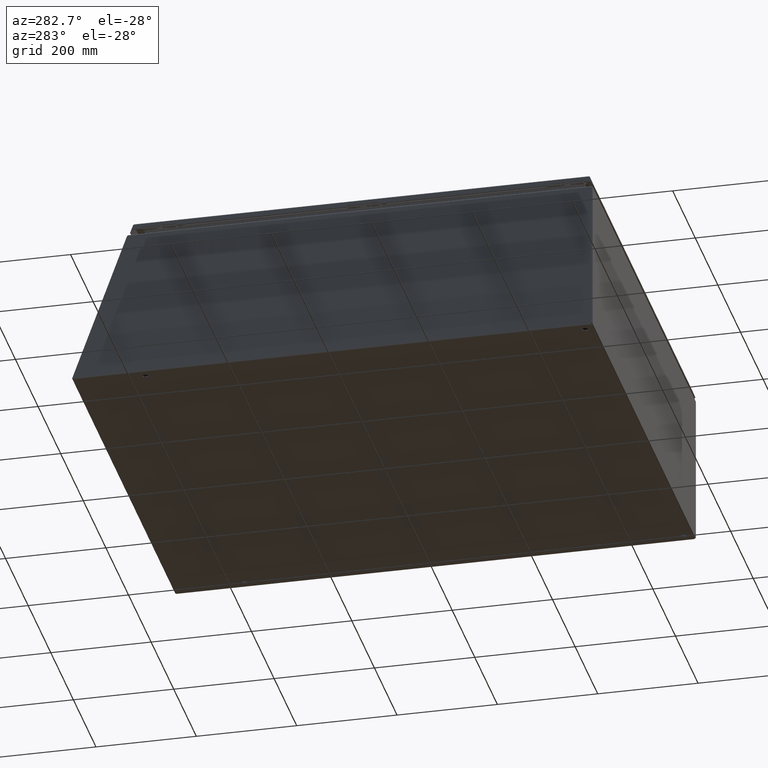
[diagram: clean part render]
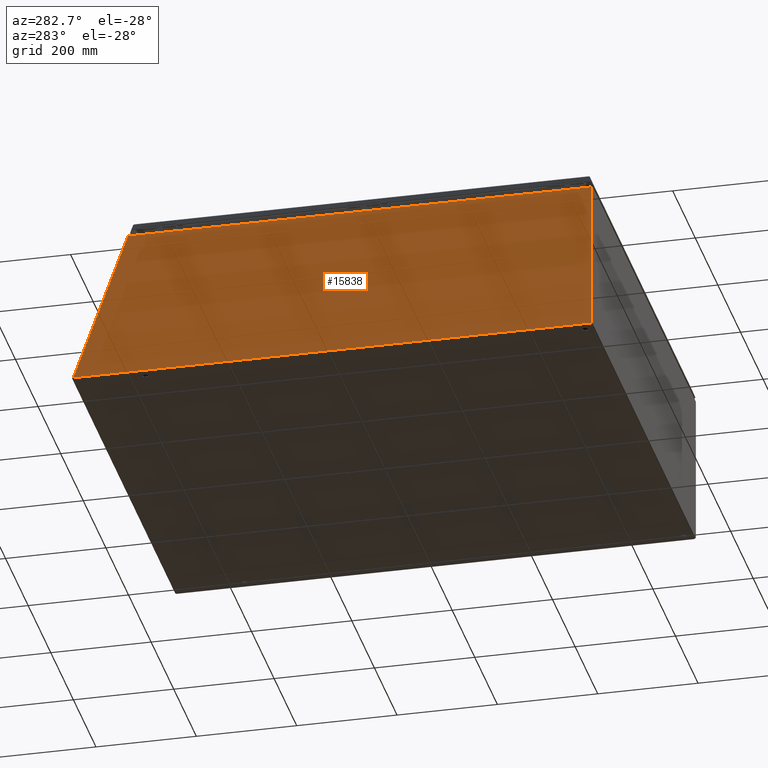
[diagram: same view with one face highlighted and labeled with its STEP entity id]
A machine part, auxiliary view. The second image highlights one B-rep face of the part: STEP entity #15838.
In plain terms, the highlighted planar face has unit normal (1, 0, 0).
Its self-contained STEP definition (entity closure, byte-faithful):
#439=PLANE('',#16859);
#1195=LINE('',#23392,#2422);
#1260=LINE('',#24519,#2487);
#1270=LINE('',#24539,#2497);
#1273=LINE('',#24544,#2500);
#1274=LINE('',#24546,#2501);
#2422=VECTOR('',#18619,36.3583507603756);
#2487=VECTOR('',#18746,0.0309571067808761);
#2497=VECTOR('',#18766,11.7638393167319);
#2500=VECTOR('',#18771,12.5461238486048);
#2501=VECTOR('',#18772,40.6381017833623);
#3998=FACE_OUTER_BOUND('',#5002,.T.);
#5002=EDGE_LOOP('',(#10875,#10876,#10877,#10878,#10879,#10880));
#6102=CIRCLE('',#16860,0.07);
#6830=VERTEX_POINT('',#23386);
#6831=VERTEX_POINT('',#23391);
#6882=VERTEX_POINT('',#24142);
#6909=VERTEX_POINT('',#24518);
#6914=VERTEX_POINT('',#24538);
#6916=VERTEX_POINT('',#24545);
#8301=EDGE_CURVE('',#6831,#6830,#1195,.T.);
#8432=EDGE_CURVE('',#6909,#6831,#1260,.T.);
#8443=EDGE_CURVE('',#6909,#6914,#1270,.T.);
#8446=EDGE_CURVE('',#6830,#6882,#1273,.T.);
#8447=EDGE_CURVE('',#6882,#6916,#1274,.T.);
#8448=EDGE_CURVE('',#6916,#6914,#6102,.T.);
#10875=ORIENTED_EDGE('',*,*,#8432,.T.);
#10876=ORIENTED_EDGE('',*,*,#8301,.T.);
#10877=ORIENTED_EDGE('',*,*,#8446,.T.);
#10878=ORIENTED_EDGE('',*,*,#8447,.T.);
#10879=ORIENTED_EDGE('',*,*,#8448,.T.);
#10880=ORIENTED_EDGE('',*,*,#8443,.F.);
#15838=ADVANCED_FACE('',(#3998),#439,.F.);
#16859=AXIS2_PLACEMENT_3D('',#24543,#18769,#18770);
#16860=AXIS2_PLACEMENT_3D('',#24547,#18773,#18774);
#18619=DIRECTION('',(-1.11022302462537E-016,1.,1.11022302462516E-016));
#18746=DIRECTION('',(-1.11022302462537E-016,1.,1.11022302462516E-016));
#18766=DIRECTION('',(1.12406775534952E-013,8.7910739129653E-017,-1.));
#18769=DIRECTION('center_axis',(1.,1.11022302462515E-016,9.54111947661805E-014));
#18770=DIRECTION('ref_axis',(9.92628201856862E-014,-1.11022302462506E-016,
-1.));
#18771=DIRECTION('',(1.56919551577468E-013,0.342020143325669,-0.939692620785908));
#18772=DIRECTION('',(1.09886918998157E-016,-1.,-1.08328292852169E-031));
#18773=DIRECTION('center_axis',(1.,1.09886918998171E-016,1.12377242938284E-013));
#18774=DIRECTION('ref_axis',(1.1246800787491E-013,-1.89075102281482E-016,
-1.));
#23386=CARTESIAN_POINT('',(-18.000000000002,16.0674864615593,11.89475));
#23391=CARTESIAN_POINT('',(-18.0000000000013,-20.2908642988164,11.89475));
#23392=CARTESIAN_POINT('',(-18.000000000002,-10.1609107027986,11.89475));
#24142=CARTESIAN_POINT('',(-18.,20.3585135384407,0.105249999999984));
#24518=CARTESIAN_POINT('',(-18.0000000000013,-20.3218214055972,11.89475));
#24519=CARTESIAN_POINT('',(-18.000000000002,-10.1609107027986,11.89475));
#24538=CARTESIAN_POINT('',(-18.,-20.3218214055972,0.130910683268078));
#24539=CARTESIAN_POINT('',(-18.,-20.3218214055972,-0.0673176844616949));
#24543=CARTESIAN_POINT('Origin',(-17.9999999999983,-2.00517642734957E-015,
-17.8757838422298));
#24544=CARTESIAN_POINT('',(-17.9999999999992,22.0764170697651,-4.61465116111517));
#24545=CARTESIAN_POINT('',(-18.,-20.2795882449216,0.10524999999999));
#24546=CARTESIAN_POINT('',(-18.,0.0374999999999972,0.105249999999987));
#24547=CARTESIAN_POINT('Origin',(-18.,-20.3347133267126,0.0621080788845701));